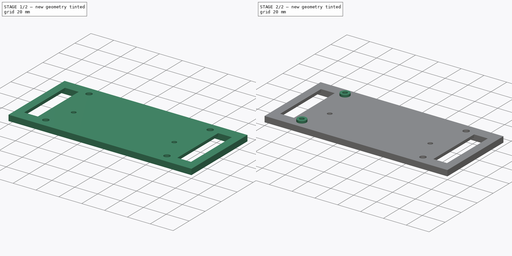
[diagram: build sequence overview — one tinted view per stage of 2, left to right]
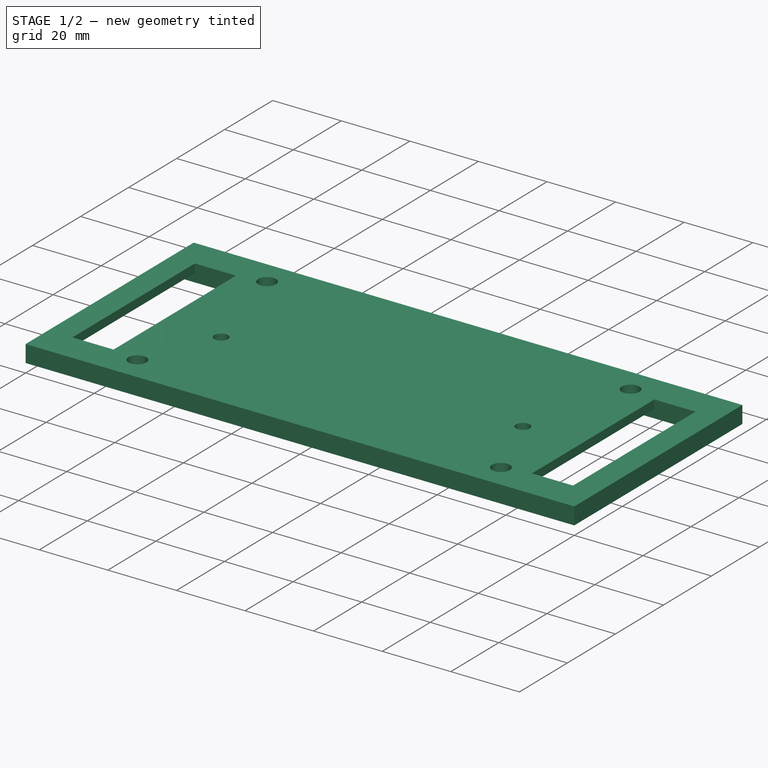
[diagram: stage 1 of 2 — iso view after this stage's code; geometry added in this stage tinted green]
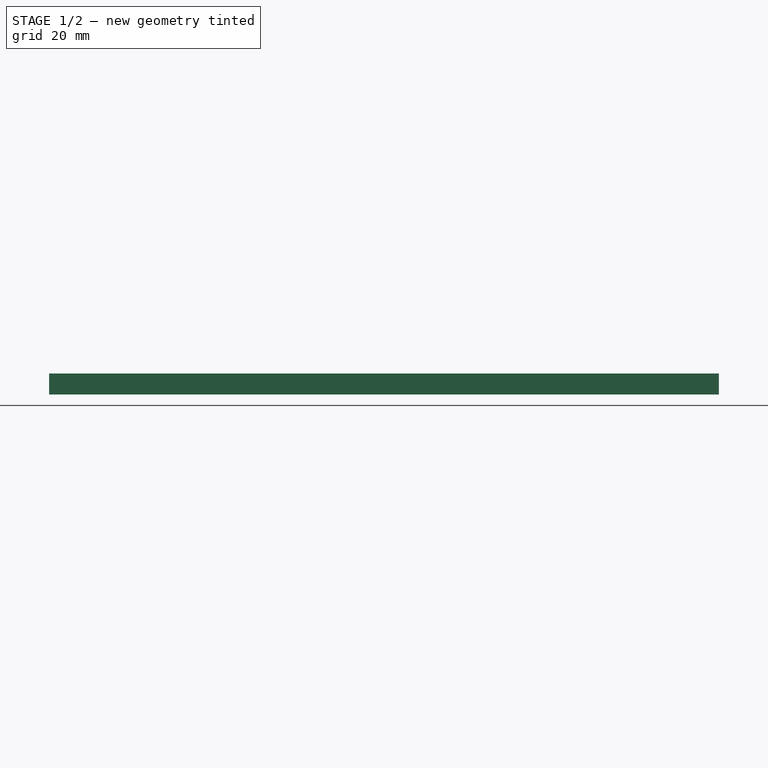
[diagram: stage 1 of 2 — front view after this stage's code; geometry added in this stage tinted green]
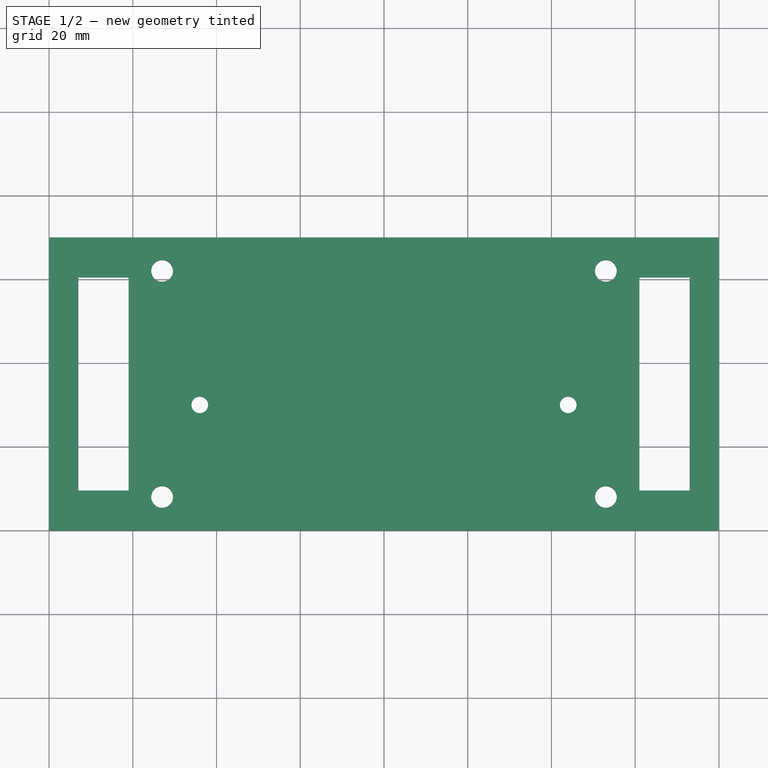
[diagram: stage 1 of 2 — top view after this stage's code; geometry added in this stage tinted green]
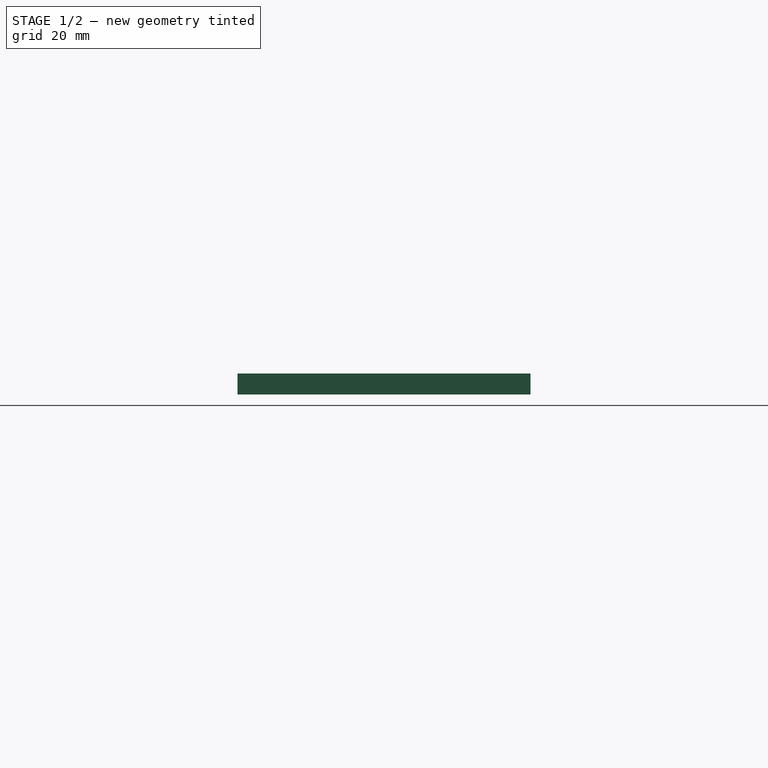
[diagram: stage 1 of 2 — right view after this stage's code; geometry added in this stage tinted green]
FCSTD DOCUMENT  (FreeCAD 0.19R24291 (Git))
Label: electronic-box
License: All rights reserved
LicenseURL: http://en.wikipedia.org/wiki/All_rights_reserved
objects: Sketcher::SketchObject×3, PartDesign::Pad×2, Part::Feature×1, App::Part×1, PartDesign::Pocket×1, PartDesign::Body×1
note: 11 computed .brp shape members not serialized (recipe doc carries the construction recipe); baked Part::Feature solids carry a one-line shape summary decoded from their .brp

FEATURE [Sketcher::SketchObject] Sketch
  FullyConstrained = true
  MapMode = 5
  Support = -> [XY_Plane]
  sketch-geometry (18):
    g0: LineSegment StartX=0 StartY=0 StartZ=0 EndX=160 EndY=0 EndZ=0
    g1: LineSegment StartX=160 StartY=0 StartZ=0 EndX=160 EndY=70 EndZ=0
    g2: LineSegment StartX=160 StartY=70 StartZ=0 EndX=0 EndY=70 EndZ=0
    g3: LineSegment StartX=0 StartY=70 StartZ=0 EndX=0 EndY=0 EndZ=0
    g4: LineSegment StartX=7 StartY=60.5 StartZ=0 EndX=19 EndY=60.5 EndZ=0
    g5: LineSegment StartX=19 StartY=60.5 StartZ=0 EndX=19 EndY=9.5 EndZ=0
    g6: LineSegment StartX=19 StartY=9.5 StartZ=0 EndX=7 EndY=9.5 EndZ=0
    g7: LineSegment StartX=7 StartY=9.5 StartZ=0 EndX=7 EndY=60.5 EndZ=0
    g8: LineSegment StartX=153 StartY=60.5 StartZ=0 EndX=141 EndY=60.5 EndZ=0
    g9: LineSegment StartX=141 StartY=60.5 StartZ=0 EndX=141 EndY=9.5 EndZ=0
    g10: LineSegment StartX=141 StartY=9.5 StartZ=0 EndX=153 EndY=9.5 EndZ=0
    g11: LineSegment StartX=153 StartY=9.5 StartZ=0 EndX=153 EndY=60.5 EndZ=0
    g12: Circle CenterX=27 CenterY=62 CenterZ=0 NormalX=0 NormalY=0 NormalZ=1 AngleXU=0 Radius=2.6
    g13: Circle CenterX=27 CenterY=8 CenterZ=0 NormalX=0 NormalY=0 NormalZ=1 AngleXU=0 Radius=2.6
    g14: Circle CenterX=133 CenterY=62 CenterZ=0 NormalX=0 NormalY=0 NormalZ=1 AngleXU=0 Radius=2.6
    g15: Circle CenterX=133 CenterY=8 CenterZ=0 NormalX=0 NormalY=0 NormalZ=1 AngleXU=0 Radius=2.6
    g16: Circle CenterX=36 CenterY=30 CenterZ=0 NormalX=0 NormalY=0 NormalZ=1 AngleXU=0 Radius=2
    g17: Circle CenterX=124 CenterY=30 CenterZ=0 NormalX=0 NormalY=0 NormalZ=1 AngleXU=0 Radius=2
  constraints (53):
    c: Coincident(g0,g1)
    c: Coincident(g1,g2)
    c: Coincident(g2,g3)
    c: Coincident(g3,g0)
    c: Horizontal(g0)
    c: Horizontal(g2)
    c: Vertical(g1)
    c: Vertical(g3)
    c: Coincident(g0,g-1)
    c: DistanceY(g1,g1) = 70
    c: DistanceX(g2,g2) = 160
    c: Coincident(g4,g5)
    c: Coincident(g5,g6)
    c: Coincident(g6,g7)
    c: Coincident(g7,g4)
    c: Horizontal(g4)
    c: Horizontal(g6)
    c: Vertical(g5)
    c: Vertical(g7)
    c: DistanceY(g5,g5) = 51
    c: DistanceX(g4,g4) = 12
    c: DistanceX(g2,g4) = 7
    c: DistanceY(g4,g2) = 9.5
    c: Coincident(g8,g9)
    c: Coincident(g9,g10)
    c: Coincident(g10,g11)
    c: Coincident(g11,g8)
    c: Horizontal(g8)
    c: Horizontal(g10)
    c: Vertical(g9)
    c: Vertical(g11)
    c: DistanceY(g8,g1) = 9.5
    c: DistanceX(g8,g1) = 7
    c: DistanceY(g9,g9) = 51
    c: DistanceX(g10,g10) = 12
    c: Vertical(g15,g14)
    c: Vertical(g12,g13)
    c: Horizontal(g12,g14)
    c: Horizontal(g15,g13)
    c: DistanceY(g12,g2) = 8
    c: DistanceY(g0,g13) = 8
    c: DistanceX(g2,g12) = 27
    c: DistanceX(g14,g1) = 27
    c: Equal(g13,g12)
    c: Equal(g12,g14)
    c: Equal(g14,g15)
    c: Radius(g12) = 2.6
    c: Horizontal(g17,g16)
    c: DistanceX(g16,g17) = 88
    c: DistanceX(g0,g16) = 36
    c: DistanceY(g0,g16) = 30
    c: Equal(g16,g17)
    c: Radius(g16) = 2
FEATURE [PartDesign::Pad] Pad
  Direction = (1,1,1)
  Length = 5
  Length2 = 100
  Profile = -> Sketch
  Type = 0
FEATURE [Part::Feature] Part__Feature  label="COMPOUND"
  shape: bbox 96 x 38 x 1.6 mm, 72 faces (baked)
FEATURE [App::Part] Open_CASCADE_STEP_translator_7_5_1  label="fuse-pcb"
  Group = -> [Part__Feature]
  Origin = -> Origin002
  Placement = pos=(80,30,7) rot=(0,0,1;0rad)
FEATURE [Sketcher::SketchObject] Sketch001
  FullyConstrained = true
  MapMode = 5
  Placement = pos=(0,0,0) rot=(1,0,0;3.14159rad)
  Support = -> [Pad]
  sketch-geometry (8):
    g0: LineSegment StartX=3 StartY=-9.5 StartZ=0 EndX=23 EndY=-9.5 EndZ=0
    g1: LineSegment StartX=23 StartY=-9.5 StartZ=0 EndX=23 EndY=-60.5 EndZ=0
    g2: LineSegment StartX=23 StartY=-60.5 StartZ=0 EndX=3 EndY=-60.5 EndZ=0
    g3: LineSegment StartX=3 StartY=-60.5 StartZ=0 EndX=3 EndY=-9.5 EndZ=0
    g4: LineSegment StartX=137 StartY=-9.5 StartZ=0 EndX=157 EndY=-9.5 EndZ=0
    g5: LineSegment StartX=157 StartY=-9.5 StartZ=0 EndX=157 EndY=-60.5 EndZ=0
    g6: LineSegment StartX=157 StartY=-60.5 StartZ=0 EndX=137 EndY=-60.5 EndZ=0
    g7: LineSegment StartX=137 StartY=-60.5 StartZ=0 EndX=137 EndY=-9.5 EndZ=0
  constraints (24):
    c: Coincident(g0,g1)
    c: Coincident(g1,g2)
    c: Coincident(g2,g3)
    c: Coincident(g3,g0)
    c: Horizontal(g0)
    c: Horizontal(g2)
    c: Vertical(g1)
    c: Vertical(g3)
    c: Coincident(g4,g5)
    c: Coincident(g5,g6)
    c: Coincident(g6,g7)
    c: Coincident(g7,g4)
    c: Horizontal(g4)
    c: Horizontal(g6)
    c: Vertical(g5)
    c: Vertical(g7)
    c: DistanceY(g0,g-1) = 9.5
    c: Horizontal(g0,g4)
    c: Horizontal(g1,g6)
    c: DistanceY(g3,g3) = 51
    c: DistanceX(g-1,g0) = 3
    c: DistanceX(g0,g0) = 20
    c: Equal(g0,g4)
    c: DistanceX(g0,g4) = 114
FEATURE [PartDesign::Pocket] Pocket
  BaseFeature = -> Pad
  Length = 2.5
  Length2 = 100
  Profile = -> Sketch001
  Type = 0
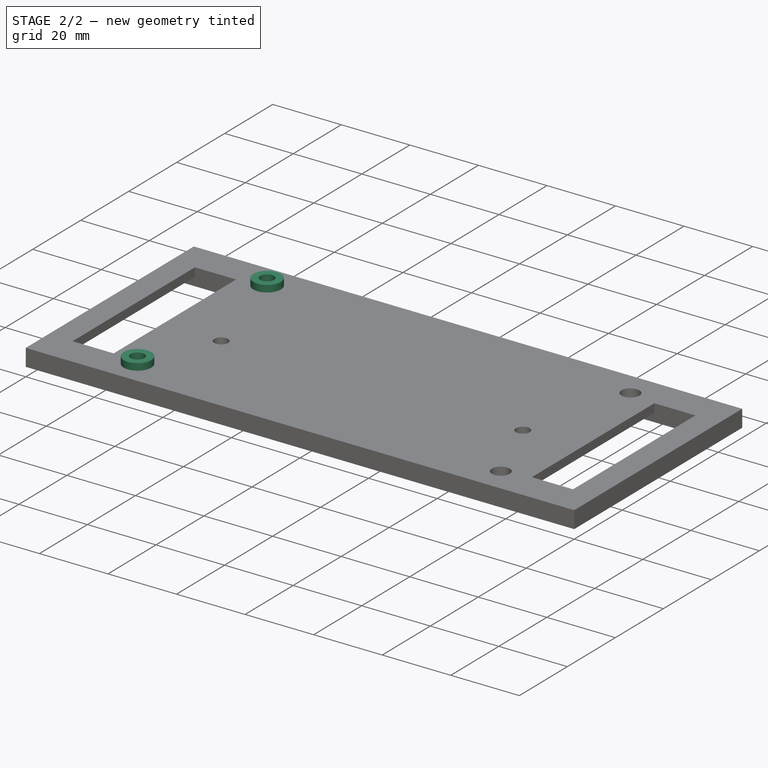
[diagram: stage 2 of 2 — iso view after this stage's code; geometry added in this stage tinted green]
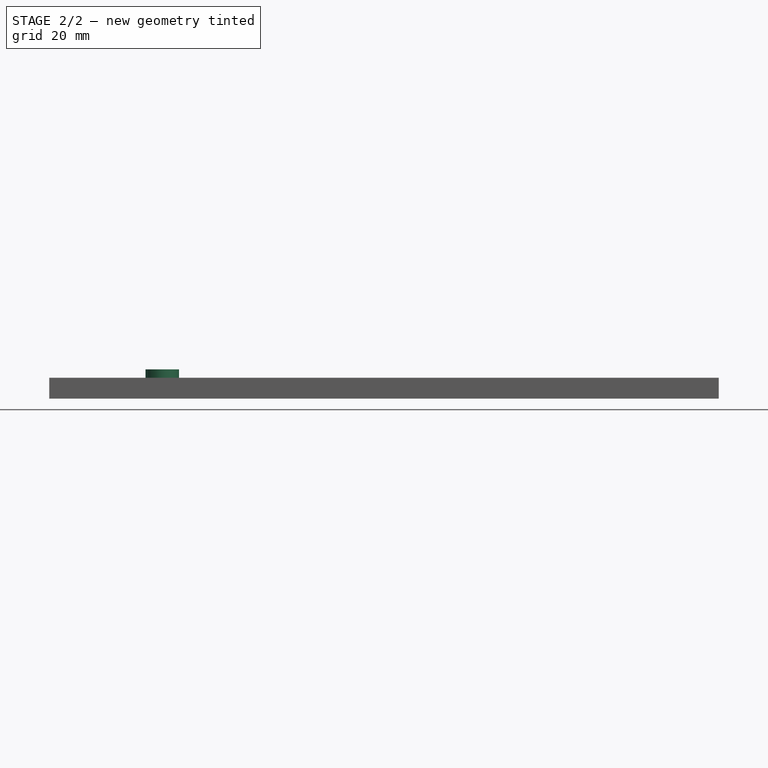
[diagram: stage 2 of 2 — front view after this stage's code; geometry added in this stage tinted green]
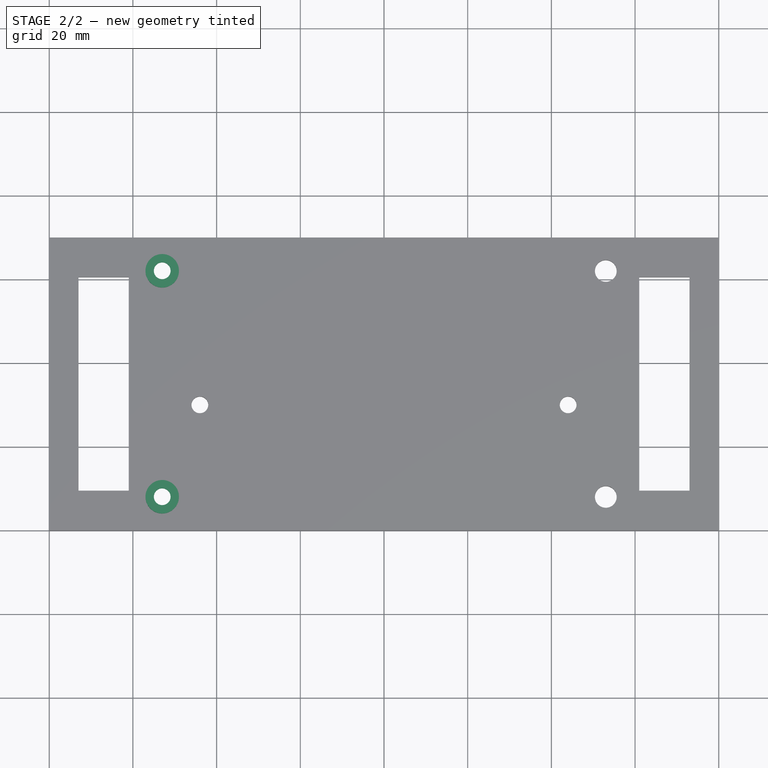
[diagram: stage 2 of 2 — top view after this stage's code; geometry added in this stage tinted green]
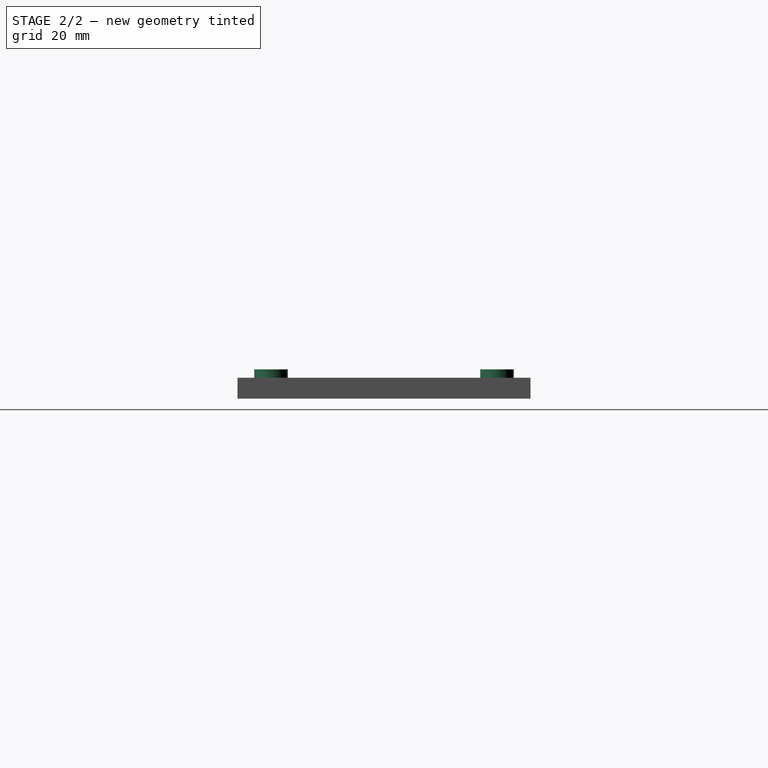
[diagram: stage 2 of 2 — right view after this stage's code; geometry added in this stage tinted green]
FEATURE [Sketcher::SketchObject] Sketch002
  FullyConstrained = true
  MapMode = 5
  Placement = pos=(0,0,5) rot=(0,0,1;0rad)
  Support = -> [Pocket]
FEATURE [PartDesign::Pad] Pad001
  BaseFeature = -> Pocket
  Direction = (1,1,1)
  Length = 2
  Length2 = 100
  Profile = -> Sketch002
  Type = 0
FEATURE [PartDesign::Body] Body
  Group = -> [Sketch,Pad,Sketch001,Pocket,Sketch002,Pad001]
  Origin = -> Origin
  Tip = -> Pad001
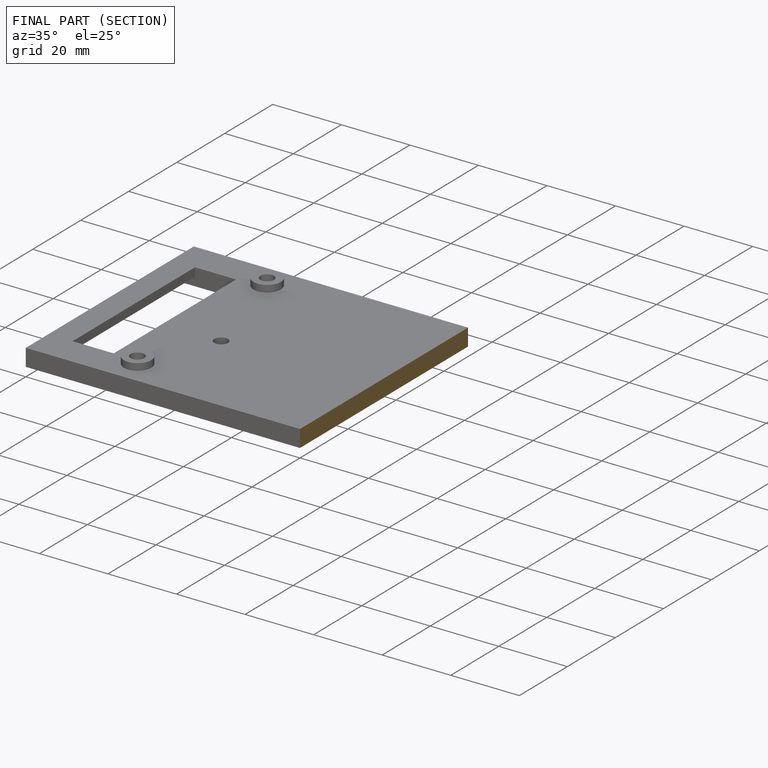
[diagram: finished part — half-section view (interior)]
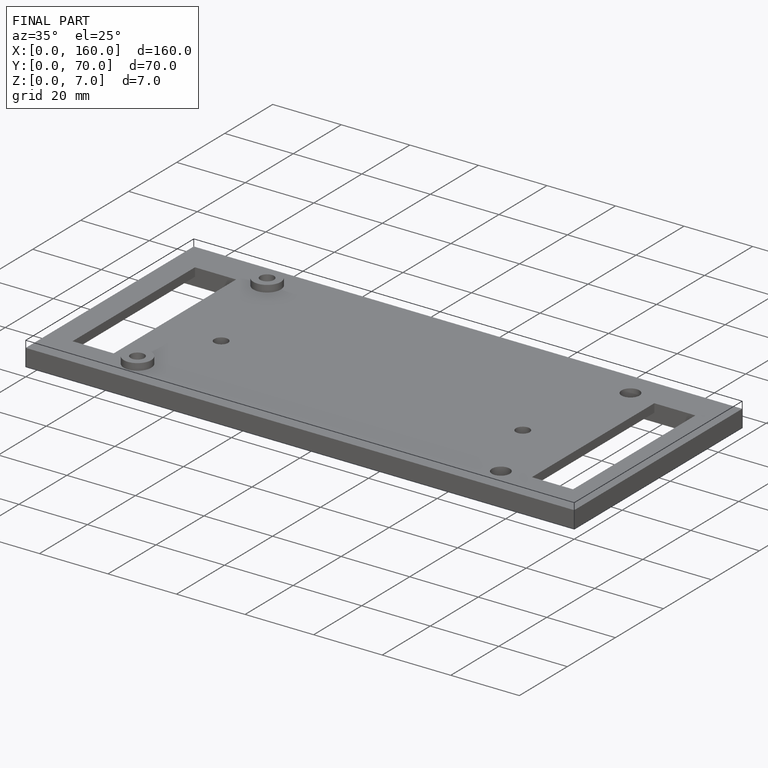
[diagram: finished part — iso view with bounding-box wireframe]
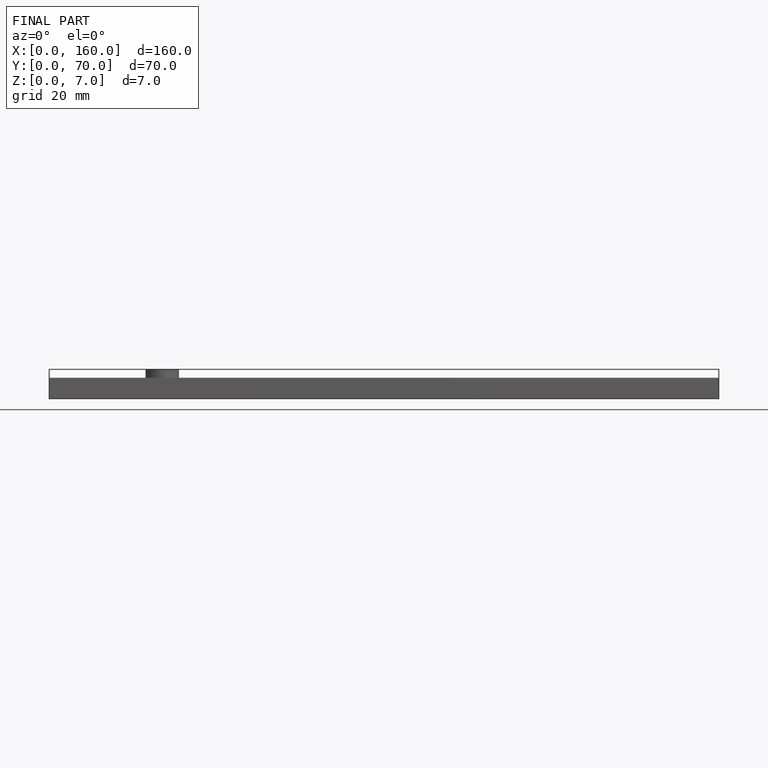
[diagram: finished part — front view with bounding-box wireframe]
